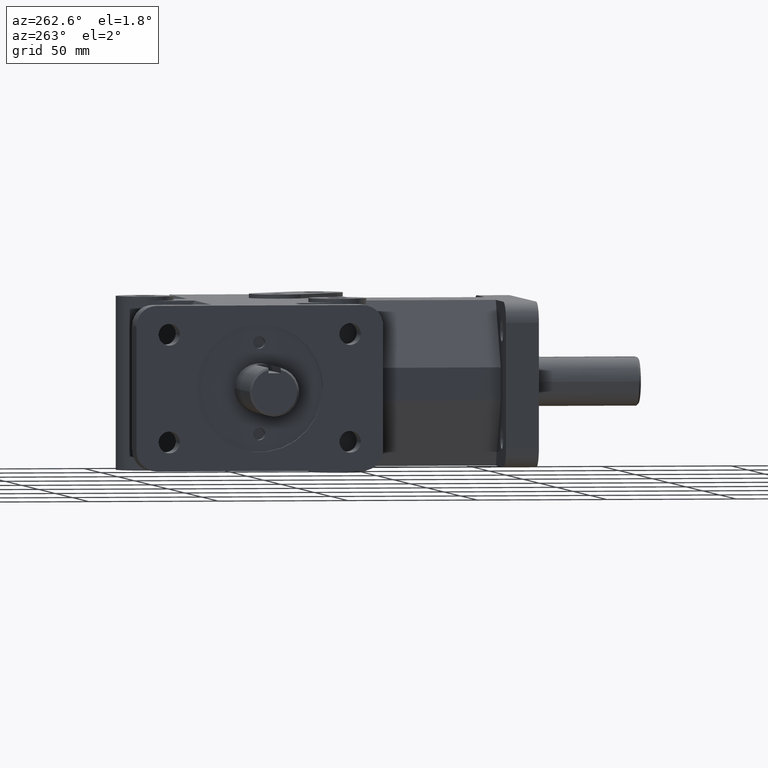
[diagram: clean part render]
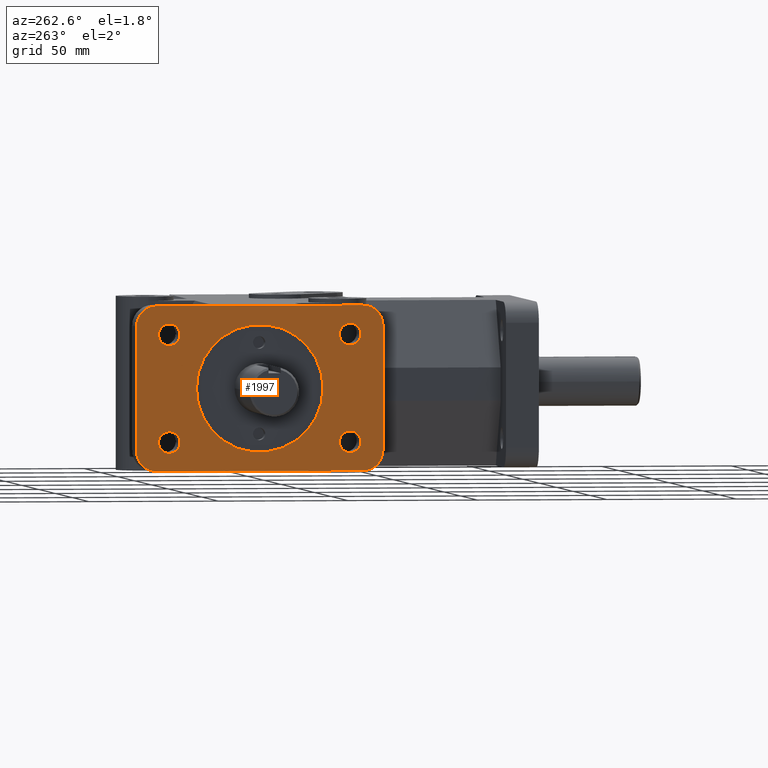
[diagram: same view with one face highlighted and labeled with its STEP entity id]
A machine part, auxiliary view. The second image highlights one B-rep face of the part: STEP entity #1997.
In plain terms, the highlighted planar face has unit normal (-1, 0, 0).
Its self-contained STEP definition (entity closure, byte-faithful):
#41=LINE('',#2895,#232);
#69=LINE('',#2949,#260);
#200=LINE('',#3348,#391);
#201=LINE('',#3350,#392);
#232=VECTOR('',#2299,1.);
#260=VECTOR('',#2335,1.);
#391=VECTOR('',#2740,1.);
#392=VECTOR('',#2743,1.);
#465=FACE_BOUND('',#697,.T.);
#466=FACE_BOUND('',#698,.T.);
#467=FACE_BOUND('',#699,.T.);
#468=FACE_BOUND('',#700,.T.);
#469=FACE_BOUND('',#701,.T.);
#560=FACE_OUTER_BOUND('',#696,.T.);
#696=EDGE_LOOP('',(#1732,#1733,#1734,#1735,#1736,#1737,#1738,#1739));
#697=EDGE_LOOP('',(#1740));
#698=EDGE_LOOP('',(#1741));
#699=EDGE_LOOP('',(#1742));
#700=EDGE_LOOP('',(#1743));
#701=EDGE_LOOP('',(#1744));
#752=CIRCLE('',#2069,0.963);
#762=CIRCLE('',#2085,0.31);
#764=CIRCLE('',#2088,0.31);
#767=CIRCLE('',#2092,0.31);
#768=CIRCLE('',#2094,0.31);
#793=CIRCLE('',#2158,0.16375);
#794=CIRCLE('',#2160,0.16375);
#795=CIRCLE('',#2162,0.16375);
#796=CIRCLE('',#2164,0.16375);
#850=VERTEX_POINT('',#2892);
#851=VERTEX_POINT('',#2894);
#872=VERTEX_POINT('',#2946);
#873=VERTEX_POINT('',#2948);
#889=VERTEX_POINT('',#2984);
#899=VERTEX_POINT('',#3016);
#901=VERTEX_POINT('',#3022);
#904=VERTEX_POINT('',#3030);
#905=VERTEX_POINT('',#3034);
#968=VERTEX_POINT('',#3246);
#969=VERTEX_POINT('',#3250);
#970=VERTEX_POINT('',#3254);
#971=VERTEX_POINT('',#3258);
#1037=EDGE_CURVE('',#851,#850,#41,.T.);
#1065=EDGE_CURVE('',#873,#872,#69,.T.);
#1083=EDGE_CURVE('',#889,#889,#752,.T.);
#1099=EDGE_CURVE('',#899,#872,#762,.T.);
#1102=EDGE_CURVE('',#851,#901,#764,.T.);
#1107=EDGE_CURVE('',#904,#850,#767,.T.);
#1108=EDGE_CURVE('',#873,#905,#768,.T.);
#1210=EDGE_CURVE('',#968,#968,#793,.T.);
#1212=EDGE_CURVE('',#969,#969,#794,.T.);
#1214=EDGE_CURVE('',#970,#970,#795,.T.);
#1216=EDGE_CURVE('',#971,#971,#796,.T.);
#1260=EDGE_CURVE('',#904,#905,#200,.T.);
#1261=EDGE_CURVE('',#901,#899,#201,.T.);
#1732=ORIENTED_EDGE('',*,*,#1099,.F.);
#1733=ORIENTED_EDGE('',*,*,#1261,.F.);
#1734=ORIENTED_EDGE('',*,*,#1102,.F.);
#1735=ORIENTED_EDGE('',*,*,#1037,.T.);
#1736=ORIENTED_EDGE('',*,*,#1107,.F.);
#1737=ORIENTED_EDGE('',*,*,#1260,.T.);
#1738=ORIENTED_EDGE('',*,*,#1108,.F.);
#1739=ORIENTED_EDGE('',*,*,#1065,.T.);
#1740=ORIENTED_EDGE('',*,*,#1210,.T.);
#1741=ORIENTED_EDGE('',*,*,#1212,.T.);
#1742=ORIENTED_EDGE('',*,*,#1214,.T.);
#1743=ORIENTED_EDGE('',*,*,#1216,.T.);
#1744=ORIENTED_EDGE('',*,*,#1083,.T.);
#1893=PLANE('',#2200);
#1997=ADVANCED_FACE('',(#560,#465,#466,#467,#468,#469),#1893,.T.);
#2069=AXIS2_PLACEMENT_3D('',#2985,#2361,#2362);
#2085=AXIS2_PLACEMENT_3D('',#3017,#2399,#2400);
#2088=AXIS2_PLACEMENT_3D('',#3023,#2406,#2407);
#2092=AXIS2_PLACEMENT_3D('',#3032,#2416,#2417);
#2094=AXIS2_PLACEMENT_3D('',#3035,#2420,#2421);
#2158=AXIS2_PLACEMENT_3D('',#3247,#2621,#2622);
#2160=AXIS2_PLACEMENT_3D('',#3251,#2626,#2627);
#2162=AXIS2_PLACEMENT_3D('',#3255,#2631,#2632);
#2164=AXIS2_PLACEMENT_3D('',#3259,#2636,#2637);
#2200=AXIS2_PLACEMENT_3D('',#3349,#2741,#2742);
#2299=DIRECTION('',(0.,1.,0.));
#2335=DIRECTION('',(0.,-1.,0.));
#2361=DIRECTION('center_axis',(1.,0.,0.));
#2362=DIRECTION('ref_axis',(0.,1.,0.));
#2399=DIRECTION('center_axis',(1.,0.,0.));
#2400=DIRECTION('ref_axis',(0.,-0.707106781186548,-0.707106781186548));
#2406=DIRECTION('center_axis',(1.,0.,0.));
#2407=DIRECTION('ref_axis',(0.,-0.707106781186548,0.707106781186548));
#2416=DIRECTION('center_axis',(1.,0.,0.));
#2417=DIRECTION('ref_axis',(0.,0.707106781186548,0.707106781186548));
#2420=DIRECTION('center_axis',(1.,0.,0.));
#2421=DIRECTION('ref_axis',(0.,0.707106781186548,-0.707106781186548));
#2621=DIRECTION('center_axis',(1.,0.,0.));
#2622=DIRECTION('ref_axis',(0.,-1.,0.));
#2626=DIRECTION('center_axis',(1.,0.,0.));
#2627=DIRECTION('ref_axis',(0.,-1.,0.));
#2631=DIRECTION('center_axis',(1.,0.,0.));
#2632=DIRECTION('ref_axis',(0.,-1.,0.));
#2636=DIRECTION('center_axis',(1.,0.,0.));
#2637=DIRECTION('ref_axis',(0.,-1.,0.));
#2740=DIRECTION('',(0.,0.,-1.));
#2741=DIRECTION('center_axis',(-1.,0.,0.));
#2742=DIRECTION('ref_axis',(0.,1.,0.));
#2743=DIRECTION('',(0.,0.,-1.));
#2892=CARTESIAN_POINT('',(-2.875,5.94,1.25));
#2894=CARTESIAN_POINT('',(-2.875,2.81,1.25));
#2895=CARTESIAN_POINT('',(-2.875,2.5,1.25));
#2946=CARTESIAN_POINT('',(-2.875,2.81,-1.25));
#2948=CARTESIAN_POINT('',(-2.875,5.94,-1.25));
#2949=CARTESIAN_POINT('',(-2.875,2.5,-1.25));
#2984=CARTESIAN_POINT('',(-2.875,3.412,-1.1793348675789E-16));
#2985=CARTESIAN_POINT('Origin',(-2.875,4.375,0.));
#3016=CARTESIAN_POINT('',(-2.875,2.5,-0.94));
#3017=CARTESIAN_POINT('Origin',(-2.875,2.81,-0.94));
#3022=CARTESIAN_POINT('',(-2.875,2.5,0.94));
#3023=CARTESIAN_POINT('Origin',(-2.875,2.81,0.94));
#3030=CARTESIAN_POINT('',(-2.875,6.25,0.94));
#3032=CARTESIAN_POINT('Origin',(-2.875,5.94,0.94));
#3034=CARTESIAN_POINT('',(-2.875,6.25,-0.94));
#3035=CARTESIAN_POINT('Origin',(-2.875,5.94,-0.94));
#3246=CARTESIAN_POINT('',(-2.875,3.16375,-0.8125));
#3247=CARTESIAN_POINT('Origin',(-2.875,3.,-0.8125));
#3250=CARTESIAN_POINT('',(-2.875,3.16375,0.8125));
#3251=CARTESIAN_POINT('Origin',(-2.875,3.,0.8125));
#3254=CARTESIAN_POINT('',(-2.875,5.91375,0.8125));
#3255=CARTESIAN_POINT('Origin',(-2.875,5.75,0.8125));
#3258=CARTESIAN_POINT('',(-2.875,5.91375,-0.8125));
#3259=CARTESIAN_POINT('Origin',(-2.875,5.75,-0.8125));
#3348=CARTESIAN_POINT('',(-2.875,6.25,0.));
#3349=CARTESIAN_POINT('Origin',(-2.875,6.25,0.));
#3350=CARTESIAN_POINT('',(-2.875,2.5,0.));